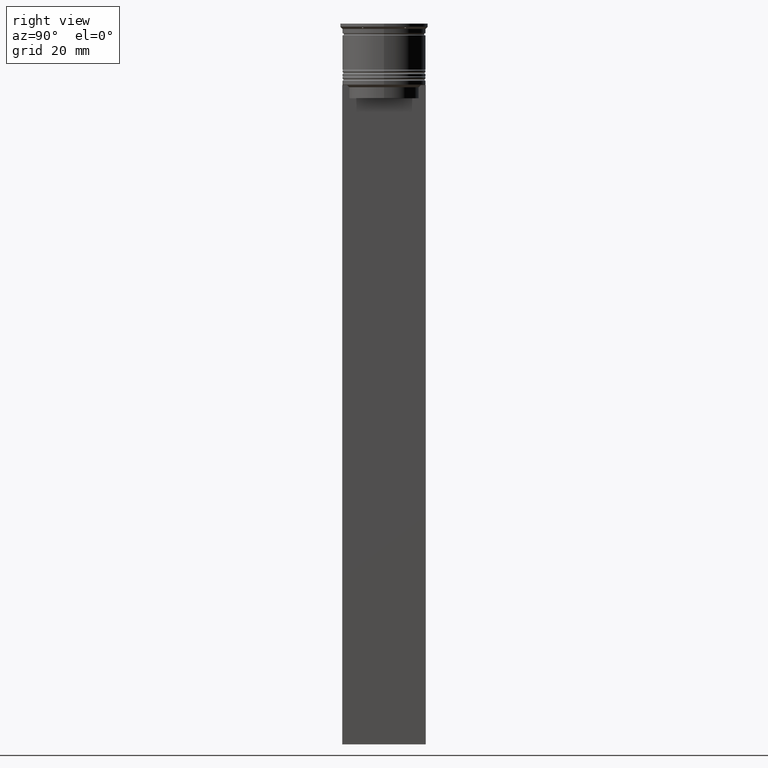
[diagram: clean part render]
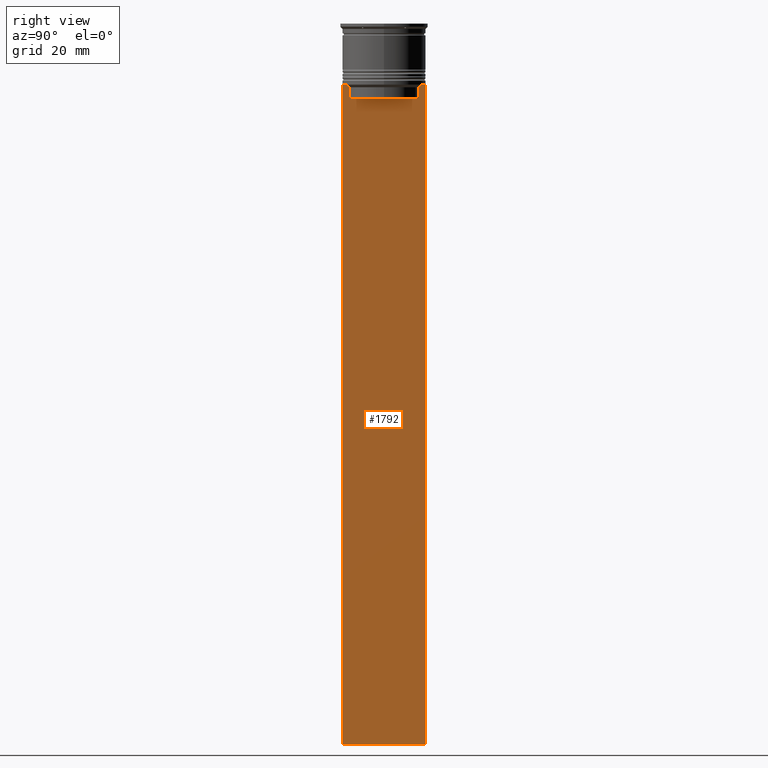
[diagram: same view with one face highlighted and labeled with its STEP entity id]
A machine part, right view. The second image highlights one B-rep face of the part: STEP entity #1792.
In plain terms, the highlighted planar face has unit normal (-1, 0, 0).
Its self-contained STEP definition (entity closure, byte-faithful):
#13 = AXIS2_PLACEMENT_3D ( 'NONE', #1333, #61, #627 ) ;
#21 = VECTOR ( 'NONE', #334, 1000.000000000000000 ) ;
#35 = CARTESIAN_POINT ( 'NONE',  ( 0.5000000000000000000, 8.385105843100605583, -14.00000000000000178 ) ) ;
#52 = EDGE_CURVE ( 'NONE', #1888, #1754, #1489, .T. ) ;
#53 = LINE ( 'NONE', #1098, #2506 ) ;
#56 = VERTEX_POINT ( 'NONE', #456 ) ;
#61 = DIRECTION ( 'NONE',  ( -1.000000000000000000, 0.000000000000000000, 0.000000000000000000 ) ) ;
#159 = EDGE_CURVE ( 'NONE', #226, #1723, #53, .T. ) ;
#202 = DIRECTION ( 'NONE',  ( 0.000000000000000000, -1.000000000000000000, 0.000000000000000000 ) ) ;
#216 = CARTESIAN_POINT ( 'NONE',  ( 0.5000000000000000000, -7.884161337770803080, -14.50000000000000000 ) ) ;
#226 = VERTEX_POINT ( 'NONE', #460 ) ;
#262 = VERTEX_POINT ( 'NONE', #708 ) ;
#282 = CARTESIAN_POINT ( 'NONE',  ( 0.5000000000000000000, -9.500000000000001776, 5.026297590440445440 ) ) ;
#302 = VERTEX_POINT ( 'NONE', #2118 ) ;
#334 = DIRECTION ( 'NONE',  ( 0.000000000000000000, -1.000000000000000000, 0.000000000000000000 ) ) ;
#339 = EDGE_CURVE ( 'NONE', #56, #302, #1593, .T. ) ;
#386 = B_SPLINE_CURVE_WITH_KNOTS ( 'NONE', 3,
 ( #669, #2308, #1285, #1726 ),
 .UNSPECIFIED., .F., .F.,
 ( 4, 4 ),
 ( 0.03673372442973153046, 0.03744389749832059688 ),
 .UNSPECIFIED. ) ;
#387 = EDGE_CURVE ( 'NONE', #2636, #826, #778, .T. ) ;
#432 = ORIENTED_EDGE ( 'NONE', *, *, #887, .F. ) ;
#456 = CARTESIAN_POINT ( 'NONE',  ( 0.5000000000000000000, -8.385105843100605583, -14.00000000000000178 ) ) ;
#460 = CARTESIAN_POINT ( 'NONE',  ( 0.5000000000000000000, -7.884161337770803080, -17.00000000000000000 ) ) ;
#478 = VECTOR ( 'NONE', #1426, 1000.000000000000000 ) ;
#484 = VECTOR ( 'NONE', #2592, 1000.000000000000000 ) ;
#494 = LINE ( 'NONE', #888, #1229 ) ;
#524 = DIRECTION ( 'NONE',  ( 0.000000000000000000, 0.000000000000000000, -1.000000000000000000 ) ) ;
#549 = CARTESIAN_POINT ( 'NONE',  ( 0.5000000000000000000, 9.499999999999998224, -14.00000000000000178 ) ) ;
#592 = LINE ( 'NONE', #990, #478 ) ;
#608 = LINE ( 'NONE', #1029, #1011 ) ;
#627 = DIRECTION ( 'NONE',  ( 0.000000000000000000, 0.000000000000000000, 1.000000000000000000 ) ) ;
#634 = ORIENTED_EDGE ( 'NONE', *, *, #1494, .T. ) ;
#669 = CARTESIAN_POINT ( 'NONE',  ( 0.5000000000000000000, -7.884161337770803080, -14.50000000000000000 ) ) ;
#708 = CARTESIAN_POINT ( 'NONE',  ( 0.5000000000000000000, -9.500000000000001776, -163.9999999999999716 ) ) ;
#716 = CARTESIAN_POINT ( 'NONE',  ( 0.5000000000000000000, 8.385105843100605583, -14.00000000000000178 ) ) ;
#749 = ORIENTED_EDGE ( 'NONE', *, *, #1243, .T. ) ;
#778 = LINE ( 'NONE', #1394, #1611 ) ;
#826 = VERTEX_POINT ( 'NONE', #1498 ) ;
#856 = VERTEX_POINT ( 'NONE', #918 ) ;
#864 = CARTESIAN_POINT ( 'NONE',  ( 0.5000000000000000000, 8.218133718559618828, -14.16667606394327983 ) ) ;
#879 = CARTESIAN_POINT ( 'NONE',  ( 0.5000000000000000000, 8.051152811434374001, -14.33334332653219079 ) ) ;
#887 = EDGE_CURVE ( 'NONE', #2636, #1175, #1892, .T. ) ;
#888 = CARTESIAN_POINT ( 'NONE',  ( 0.5000000000000000000, 7.884161337770803080, 0.000000000000000000 ) ) ;
#918 = CARTESIAN_POINT ( 'NONE',  ( 0.5000000000000000000, 7.884161337770803080, -17.00000000000000000 ) ) ;
#939 = ORIENTED_EDGE ( 'NONE', *, *, #159, .T. ) ;
#990 = CARTESIAN_POINT ( 'NONE',  ( 0.5000000000000000000, -9.500000000000001776, -163.9999999999999716 ) ) ;
#1011 = VECTOR ( 'NONE', #202, 1000.000000000000000 ) ;
#1020 = ORIENTED_EDGE ( 'NONE', *, *, #1319, .T. ) ;
#1029 = CARTESIAN_POINT ( 'NONE',  ( 0.5000000000000000000, 7.899999999999994138, -17.00000000000000000 ) ) ;
#1043 = CARTESIAN_POINT ( 'NONE',  ( 0.5000000000000000000, 7.884161337770803080, -14.50000000000000000 ) ) ;
#1059 = EDGE_CURVE ( 'NONE', #302, #2181, #2015, .T. ) ;
#1098 = CARTESIAN_POINT ( 'NONE',  ( 0.5000000000000000000, -7.884161337770803080, 0.000000000000000000 ) ) ;
#1126 = PLANE ( 'NONE',  #13 ) ;
#1131 = VECTOR ( 'NONE', #524, 1000.000000000000000 ) ;
#1151 = DIRECTION ( 'NONE',  ( 0.000000000000000000, -1.000000000000000000, 0.000000000000000000 ) ) ;
#1175 = VERTEX_POINT ( 'NONE', #1436 ) ;
#1186 = VECTOR ( 'NONE', #2650, 1000.000000000000000 ) ;
#1196 = LINE ( 'NONE', #1814, #1186 ) ;
#1214 = ORIENTED_EDGE ( 'NONE', *, *, #52, .T. ) ;
#1229 = VECTOR ( 'NONE', #1708, 1000.000000000000000 ) ;
#1243 = EDGE_CURVE ( 'NONE', #262, #1175, #592, .T. ) ;
#1258 = FACE_OUTER_BOUND ( 'NONE', #1533, .T. ) ;
#1268 = VECTOR ( 'NONE', #2317, 1000.000000000000000 ) ;
#1284 = CARTESIAN_POINT ( 'NONE',  ( 0.5000000000000000000, 7.884161337770803080, -14.50000000000000000 ) ) ;
#1285 = CARTESIAN_POINT ( 'NONE',  ( 0.5000000000000000000, -8.218133703942523738, -14.16667607853445787 ) ) ;
#1319 = EDGE_CURVE ( 'NONE', #826, #1888, #1196, .T. ) ;
#1333 = CARTESIAN_POINT ( 'NONE',  ( 0.5000000000000000000, -9.500000000000001776, 5.026297590440445440 ) ) ;
#1336 = ORIENTED_EDGE ( 'NONE', *, *, #1059, .T. ) ;
#1338 = CARTESIAN_POINT ( 'NONE',  ( 0.5000000000000000000, 9.499999999999998224, 5.026297590440445440 ) ) ;
#1357 = CARTESIAN_POINT ( 'NONE',  ( 0.5000000000000000000, -9.500000000000001776, -14.00000000000000178 ) ) ;
#1394 = CARTESIAN_POINT ( 'NONE',  ( 0.5000000000000000000, -9.500000000000001776, -14.00000000000000178 ) ) ;
#1426 = DIRECTION ( 'NONE',  ( 0.000000000000000000, 1.000000000000000000, 0.000000000000000000 ) ) ;
#1436 = CARTESIAN_POINT ( 'NONE',  ( 0.5000000000000000000, 9.499999999999998224, -163.9999999999999716 ) ) ;
#1462 = ORIENTED_EDGE ( 'NONE', *, *, #339, .T. ) ;
#1467 = EDGE_CURVE ( 'NONE', #1723, #56, #386, .T. ) ;
#1489 = B_SPLINE_CURVE_WITH_KNOTS ( 'NONE', 3,
 ( #35, #864, #879, #1284 ),
 .UNSPECIFIED., .F., .F.,
 ( 4, 4 ),
 ( 0.01426761478740281447, 0.01497538974438914448 ),
 .UNSPECIFIED. ) ;
#1494 = EDGE_CURVE ( 'NONE', #2181, #262, #2131, .T. ) ;
#1498 = CARTESIAN_POINT ( 'NONE',  ( 0.5000000000000000000, 9.386692708297204035, -14.00000000000000178 ) ) ;
#1533 = EDGE_LOOP ( 'NONE', ( #1020, #1214, #2239, #2280, #939, #2358, #1462, #1336, #634, #749, #432, #1648 ) ) ;
#1569 = CARTESIAN_POINT ( 'NONE',  ( 0.5000000000000000000, -9.500000000000001776, -14.00000000000000178 ) ) ;
#1593 = LINE ( 'NONE', #1357, #484 ) ;
#1611 = VECTOR ( 'NONE', #1151, 1000.000000000000000 ) ;
#1648 = ORIENTED_EDGE ( 'NONE', *, *, #387, .T. ) ;
#1708 = DIRECTION ( 'NONE',  ( 0.000000000000000000, 0.000000000000000000, -1.000000000000000000 ) ) ;
#1723 = VERTEX_POINT ( 'NONE', #216 ) ;
#1726 = CARTESIAN_POINT ( 'NONE',  ( 0.5000000000000000000, -8.385105843100605583, -14.00000000000000178 ) ) ;
#1754 = VERTEX_POINT ( 'NONE', #1043 ) ;
#1792 = ADVANCED_FACE ( 'NONE', ( #1258 ), #1126, .F. ) ;
#1814 = CARTESIAN_POINT ( 'NONE',  ( 0.5000000000000000000, -9.500000000000001776, -14.00000000000000178 ) ) ;
#1861 = EDGE_CURVE ( 'NONE', #1754, #856, #494, .T. ) ;
#1888 = VERTEX_POINT ( 'NONE', #716 ) ;
#1892 = LINE ( 'NONE', #1338, #1268 ) ;
#1894 = DIRECTION ( 'NONE',  ( -0.000000000000000000, -0.000000000000000000, 1.000000000000000000 ) ) ;
#1980 = CARTESIAN_POINT ( 'NONE',  ( 0.5000000000000000000, -9.500000000000001776, -14.00000000000000178 ) ) ;
#2015 = LINE ( 'NONE', #1980, #21 ) ;
#2101 = EDGE_CURVE ( 'NONE', #856, #226, #608, .T. ) ;
#2118 = CARTESIAN_POINT ( 'NONE',  ( 0.5000000000000000000, -9.386692708297204035, -14.00000000000000178 ) ) ;
#2131 = LINE ( 'NONE', #282, #1131 ) ;
#2181 = VERTEX_POINT ( 'NONE', #1569 ) ;
#2239 = ORIENTED_EDGE ( 'NONE', *, *, #1861, .T. ) ;
#2280 = ORIENTED_EDGE ( 'NONE', *, *, #2101, .T. ) ;
#2308 = CARTESIAN_POINT ( 'NONE',  ( 0.5000000000000000000, -8.051152795888546265, -14.33334334204685057 ) ) ;
#2317 = DIRECTION ( 'NONE',  ( 0.000000000000000000, 0.000000000000000000, -1.000000000000000000 ) ) ;
#2358 = ORIENTED_EDGE ( 'NONE', *, *, #1467, .T. ) ;
#2506 = VECTOR ( 'NONE', #1894, 1000.000000000000000 ) ;
#2592 = DIRECTION ( 'NONE',  ( 0.000000000000000000, -1.000000000000000000, 0.000000000000000000 ) ) ;
#2636 = VERTEX_POINT ( 'NONE', #549 ) ;
#2650 = DIRECTION ( 'NONE',  ( 0.000000000000000000, -1.000000000000000000, 0.000000000000000000 ) ) ;